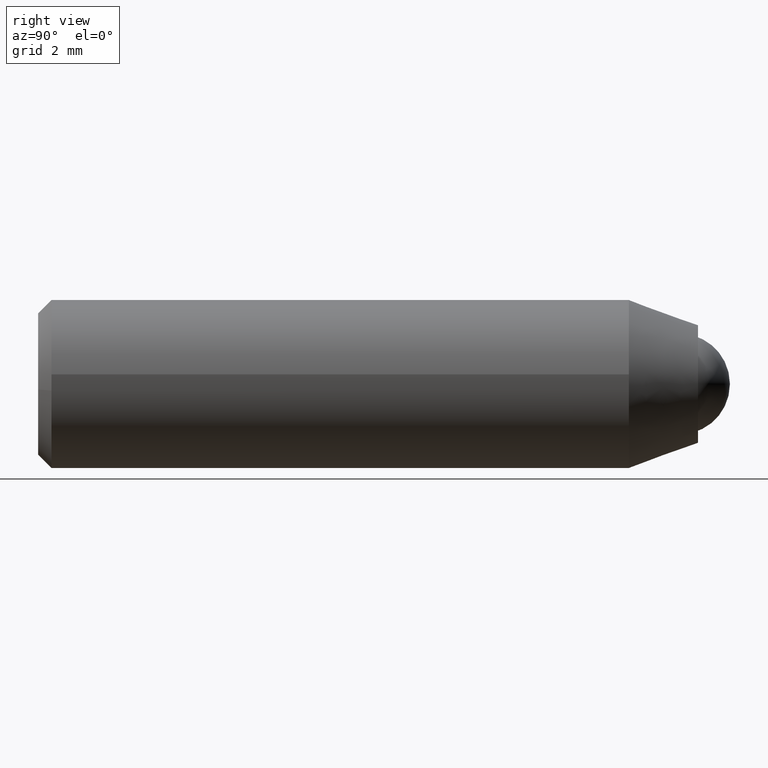
[diagram: clean part render]
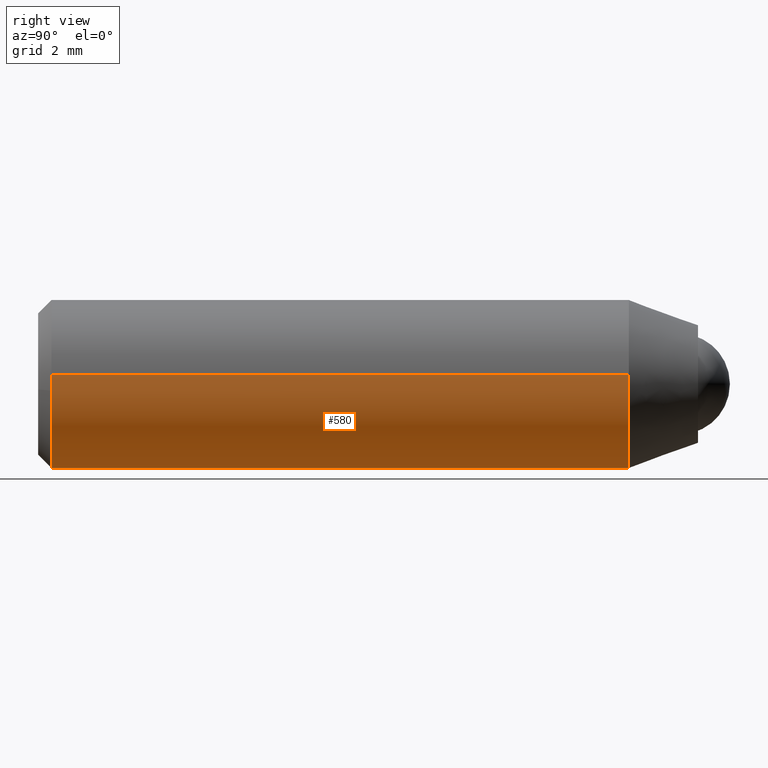
[diagram: same view with one face highlighted and labeled with its STEP entity id]
A machine part, right view. The second image highlights one B-rep face of the part: STEP entity #580.
In plain terms, the highlighted face is a freeform B-spline surface patch.
Its self-contained STEP definition (entity closure, byte-faithful):
#305=CARTESIAN_POINT('',(-2.495336895541660,-2.060607999999479,0.152622992171653));
#306=VERTEX_POINT('',#305);
#327=CARTESIAN_POINT('',(2.483672983585108,-2.060607999999999,0.285251661887261));
#328=VERTEX_POINT('',#327);
#342=CARTESIAN_POINT('',(0.0,-2.060608000000000,-2.500000000000000));
#343=VERTEX_POINT('',#342);
#344=CARTESIAN_POINT('',(0.0,-2.060608000000000,-2.500000000000000));
#345=CARTESIAN_POINT('',(2.500000000000000,-2.060607999999999,-2.500000000000000));
#346=CARTESIAN_POINT('',(2.500000000000000,-2.060608000000000,-5.143347E-016));
#347=CARTESIAN_POINT('',(2.500000000000000,-2.060608000000000,0.143093087599952));
#348=CARTESIAN_POINT('',(2.483672983585108,-2.060608000000000,0.285251661887261));
#356=(BOUNDED_CURVE()B_SPLINE_CURVE(2,(#344,#345,#346,#347,#348),.UNSPECIFIED.,.F.,.U.)B_SPLINE_CURVE_WITH_KNOTS((3,2,3),(0.0,0.250000000000000,0.269767755881565),.UNSPECIFIED.)CURVE()GEOMETRIC_REPRESENTATION_ITEM()RATIONAL_B_SPLINE_CURVE((1.0,0.707106781186548,1.0,0.976840633404520,0.957343736450889))REPRESENTATION_ITEM(''));
#357=EDGE_CURVE('',#343,#328,#356,.T.);
#359=CARTESIAN_POINT('',(-2.027433932424944,-2.060608000000348,-1.462706959596680));
#360=VERTEX_POINT('',#359);
#361=CARTESIAN_POINT('',(-2.027433932424943,-2.060608000000348,-1.462706959596681));
#362=CARTESIAN_POINT('',(-1.279071322389564,-2.060608000000000,-2.500000000000000));
#363=CARTESIAN_POINT('',(0.0,-2.060608000000000,-2.500000000000000));
#371=(BOUNDED_CURVE()B_SPLINE_CURVE(2,(#361,#362,#363),.UNSPECIFIED.,.F.,.U.)B_SPLINE_CURVE_WITH_KNOTS((3,3),(0.850743050382414,1.0),.UNSPECIFIED.)CURVE()GEOMETRIC_REPRESENTATION_ITEM()RATIONAL_B_SPLINE_CURVE((0.859068214727156,0.825134606384912,1.0))REPRESENTATION_ITEM(''));
#372=EDGE_CURVE('',#360,#343,#371,.T.);
#416=CARTESIAN_POINT('',(-2.495336895541660,-2.060607999999479,0.152622992171653));
#417=CARTESIAN_POINT('',(-2.500000000000000,-2.060608000000000,0.076382732217682));
#418=CARTESIAN_POINT('',(-2.500000000000000,-2.060608000000000,-5.143347E-016));
#419=CARTESIAN_POINT('',(-2.500000000000000,-2.060608000000000,-0.807690946699587));
#420=CARTESIAN_POINT('',(-2.027433932424943,-2.060608000000348,-1.462706959596681));
#428=(BOUNDED_CURVE()B_SPLINE_CURVE(2,(#416,#417,#418,#419,#420),.UNSPECIFIED.,.F.,.U.)B_SPLINE_CURVE_WITH_KNOTS((3,2,3),(0.739332848609187,0.750000000000000,0.850743050382414),.UNSPECIFIED.)CURVE()GEOMETRIC_REPRESENTATION_ITEM()RATIONAL_B_SPLINE_CURVE((0.976071798136641,0.987502654774297,1.0,0.881972174801636,0.859068214727156))REPRESENTATION_ITEM(''));
#429=EDGE_CURVE('',#306,#360,#428,.T.);
#453=CARTESIAN_POINT('',(2.483672983576886,-19.250000000000000,0.285251661958853));
#454=VERTEX_POINT('',#453);
#470=CARTESIAN_POINT('',(2.483672983585108,-2.060607999999999,0.285251661887261));
#471=CARTESIAN_POINT('',(2.483672983576886,-19.250000000000000,0.285251661958853));
#472=QUASI_UNIFORM_CURVE('',1,(#470,#471),.UNSPECIFIED.,.F.,.U.);
#473=EDGE_CURVE('',#328,#454,#472,.T.);
#477=CARTESIAN_POINT('',(-2.493815165195101,-19.249999999996600,0.174384544104496));
#478=VERTEX_POINT('',#477);
#479=CARTESIAN_POINT('',(-2.495336895541660,-2.060607999999479,0.152622992171653));
#480=CARTESIAN_POINT('',(-2.493815165195101,-19.249999999996600,0.174384544104496));
#481=QUASI_UNIFORM_CURVE('',1,(#479,#480),.UNSPECIFIED.,.F.,.U.);
#482=EDGE_CURVE('',#306,#478,#481,.T.);
#500=CARTESIAN_POINT('',(-2.491745979351641,-1.630873199999998,0.211333952943859));
#501=CARTESIAN_POINT('',(-2.493532695344878,-1.630873200000000,0.182121404677623));
#502=CARTESIAN_POINT('',(-2.647958344891809,-1.630873199999999,-2.342715647217526));
#503=CARTESIAN_POINT('',(-0.152621348837143,-1.630873199999999,-2.495336996054667));
#504=CARTESIAN_POINT('',(2.342715647217524,-1.630873199999999,-2.647958344891810));
#505=CARTESIAN_POINT('',(2.495336996054667,-1.630873199999999,-0.152621348837143));
#506=CARTESIAN_POINT('',(2.508759095986944,-1.630873200000000,0.066828045241366));
#507=CARTESIAN_POINT('',(2.481381535533821,-1.630873199999999,0.305203193742844));
#508=CARTESIAN_POINT('',(2.479078468728524,-1.630873200000000,0.325255889550480));
#509=CARTESIAN_POINT('',(-2.491745979351641,-19.690478169999999,0.211333952943859));
#510=CARTESIAN_POINT('',(-2.493532695344878,-19.690478170000013,0.182121404677623));
#511=CARTESIAN_POINT('',(-2.647958344891809,-19.690478169999999,-2.342715647217526));
#512=CARTESIAN_POINT('',(-0.152621348837143,-19.690478169999999,-2.495336996054667));
#513=CARTESIAN_POINT('',(2.342715647217524,-19.690478169999999,-2.647958344891810));
#514=CARTESIAN_POINT('',(2.495336996054667,-19.690478169999999,-0.152621348837143));
#515=CARTESIAN_POINT('',(2.508759095986944,-19.690478169999999,0.066828045241366));
#516=CARTESIAN_POINT('',(2.481381535533821,-19.690478170000002,0.305203193742844));
#517=CARTESIAN_POINT('',(2.479078468728524,-19.690478170000002,0.325255889550480));
#525=(BOUNDED_SURFACE()B_SPLINE_SURFACE(2,1,((#500,#509),(#501,#510),(#502,#511),(#503,#512),(#504,#513),(#505,#514),(#506,#515),(#507,#516),(#508,#517)),.UNSPECIFIED.,.F.,.F.,.U.)B_SPLINE_SURFACE_WITH_KNOTS((3,1,2,2,1,3),(2,2),(0.0,0.069592886433216,4.211728510164166,8.353864133895115,8.850920408742830,8.894954837777750),(0.0,18.059604970000009),.UNSPECIFIED.)GEOMETRIC_REPRESENTATION_ITEM()RATIONAL_B_SPLINE_SURFACE(((1.009841920383855,1.009841920383855),(1.004920960191927,1.004920960191927),(0.707106781186548,0.707106781186548),(1.0,1.0),(0.707106781186548,0.707106781186548),(1.0,1.0),(0.964852813742386,0.964852813742386),(0.935774536890002,0.935774536890002),(0.933408121593406,0.933408121593406)))REPRESENTATION_ITEM('')SURFACE());
#526=CARTESIAN_POINT('',(2.492293334335535,-19.249999999993200,-0.196147739371851));
#527=VERTEX_POINT('',#526);
#528=CARTESIAN_POINT('',(2.492293334335535,-19.249999999993197,-0.196147739371851));
#529=CARTESIAN_POINT('',(2.500000000000000,-19.250000000000004,-0.098225267571118));
#530=CARTESIAN_POINT('',(2.500000000000000,-19.250000000000000,-5.143347E-016));
#531=CARTESIAN_POINT('',(2.500000000000000,-19.250000000000000,0.143093087672248));
#532=CARTESIAN_POINT('',(2.483672983576886,-19.249999999999993,0.285251661958853));
#540=(BOUNDED_CURVE()B_SPLINE_CURVE(2,(#528,#529,#530,#531,#532),.UNSPECIFIED.,.F.,.U.)B_SPLINE_CURVE_WITH_KNOTS((3,2,3),(0.236331300625654,0.250000000000000,0.269767755891321),.UNSPECIFIED.)CURVE()GEOMETRIC_REPRESENTATION_ITEM()RATIONAL_B_SPLINE_CURVE((0.969723356156972,0.983986122573018,1.0,0.976840633393090,0.957343736431644))REPRESENTATION_ITEM(''));
#541=EDGE_CURVE('',#527,#454,#540,.T.);
#542=ORIENTED_EDGE('',*,*,#541,.F.);
#543=CARTESIAN_POINT('',(0.0,-19.250000000000000,-2.500000000000000));
#544=VERTEX_POINT('',#543);
#545=CARTESIAN_POINT('',(0.0,-19.250000000000000,-2.500000000000000));
#546=CARTESIAN_POINT('',(2.310976229049340,-19.249999999999996,-2.500000000000000));
#547=CARTESIAN_POINT('',(2.492293334335536,-19.249999999993193,-0.196147739371851));
#555=(BOUNDED_CURVE()B_SPLINE_CURVE(2,(#545,#546,#547),.UNSPECIFIED.,.F.,.U.)B_SPLINE_CURVE_WITH_KNOTS((3,3),(0.0,0.236331300625654),.UNSPECIFIED.)CURVE()GEOMETRIC_REPRESENTATION_ITEM()RATIONAL_B_SPLINE_CURVE((1.0,0.723120658613529,0.969723356156972))REPRESENTATION_ITEM(''));
#556=EDGE_CURVE('',#544,#527,#555,.T.);
#557=ORIENTED_EDGE('',*,*,#556,.F.);
#558=CARTESIAN_POINT('',(-2.493815165195101,-19.249999999996597,0.174384544104496));
#559=CARTESIAN_POINT('',(-2.499906585700300,-19.249999999996653,0.087295391578169));
#560=CARTESIAN_POINT('',(-2.499908243746339,-19.249999999996710,-0.000006416222350));
#561=CARTESIAN_POINT('',(-2.499955723972662,-19.249999999998415,-2.500003096081465));
#562=CARTESIAN_POINT('',(0.0,-19.250000000000000,-2.500000000000000));
#570=(BOUNDED_CURVE()B_SPLINE_CURVE(2,(#558,#559,#560,#561,#562),.UNSPECIFIED.,.F.,.U.)B_SPLINE_CURVE_WITH_KNOTS((3,2,3),(0.737829682995177,0.750000000000000,1.0),.UNSPECIFIED.)CURVE()GEOMETRIC_REPRESENTATION_ITEM()RATIONAL_B_SPLINE_CURVE((0.972871408705238,0.985741586713909,1.0,0.707106781186548,1.0))REPRESENTATION_ITEM(''));
#571=EDGE_CURVE('',#478,#544,#570,.T.);
#572=ORIENTED_EDGE('',*,*,#571,.F.);
#573=ORIENTED_EDGE('',*,*,#482,.F.);
#574=ORIENTED_EDGE('',*,*,#429,.T.);
#575=ORIENTED_EDGE('',*,*,#372,.T.);
#576=ORIENTED_EDGE('',*,*,#357,.T.);
#577=ORIENTED_EDGE('',*,*,#473,.T.);
#578=EDGE_LOOP('',(#542,#557,#572,#573,#574,#575,#576,#577));
#579=FACE_OUTER_BOUND('',#578,.T.);
#580=ADVANCED_FACE('',(#579),#525,.T.);